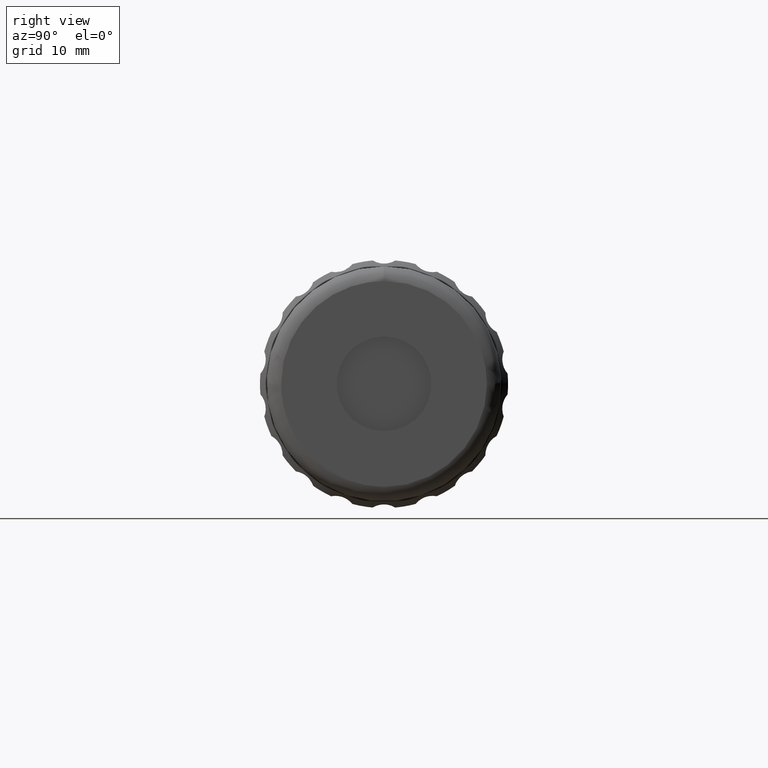
[diagram: clean part render]
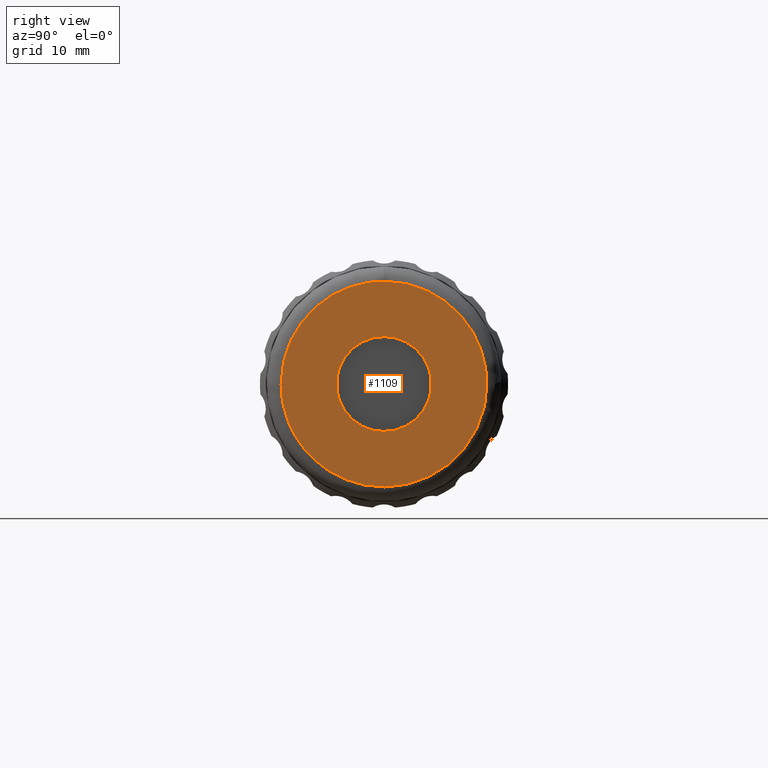
[diagram: same view with one face highlighted and labeled with its STEP entity id]
A machine part, right view. The second image highlights one B-rep face of the part: STEP entity #1109.
In plain terms, the highlighted planar face has unit normal (1, 0, 0).
Its self-contained STEP definition (entity closure, byte-faithful):
#2 = CARTESIAN_POINT ( 'NONE',  ( 78.44685803487878673, 37.76137322946063790, 14.09999999999999964 ) ) ;
#39 = ORIENTED_EDGE ( 'NONE', *, *, #1009, .T. ) ;
#70 = CARTESIAN_POINT ( 'NONE',  ( 78.44685803487880094, 31.92096199999999584, -1.036051192078660836E-15 ) ) ;
#93 = EDGE_LOOP ( 'NONE', ( #39 ) ) ;
#184 = ORIENTED_EDGE ( 'NONE', *, *, #1584, .F. ) ;
#196 = CARTESIAN_POINT ( 'NONE',  ( 78.44685803487880094, 46.02096199999999726, 14.10000000000000142 ) ) ;
#200 = PLANE ( 'NONE',  #1130 ) ;
#277 = EDGE_CURVE ( 'NONE', #1016, #397, #1406, .T. ) ;
#319 = ORIENTED_EDGE ( 'NONE', *, *, #277, .F. ) ;
#397 = VERTEX_POINT ( 'NONE', #1711 ) ;
#401 = DIRECTION ( 'NONE',  ( -1.000000000000000000, -0.000000000000000000, -0.000000000000000000 ) ) ;
#449 = CARTESIAN_POINT ( 'NONE',  ( 78.44685803487880094, 46.02096199999999726, 14.10000000000000142 ) ) ;
#524 = DIRECTION ( 'NONE',  ( 0.000000000000000000, 0.000000000000000000, -1.000000000000000000 ) ) ;
#571 = CARTESIAN_POINT ( 'NONE',  ( 78.44685803487880094, 60.12096199999999868, 0.000000000000000000 ) ) ;
#653 = CARTESIAN_POINT ( 'NONE',  ( 78.44685803487880094, 60.12096200000000579, -28.19999999999999929 ) ) ;
#689 = AXIS2_PLACEMENT_3D ( 'NONE', #1988, #401, #1034 ) ;
#946 = CARTESIAN_POINT ( 'NONE',  ( 78.44685803487878673, 60.12096199999999868, 8.259588770539359359 ) ) ;
#948 = ORIENTED_EDGE ( 'NONE', *, *, #1914, .F. ) ;
#1004 = FACE_OUTER_BOUND ( 'NONE', #1264, .T. ) ;
#1009 = EDGE_CURVE ( 'NONE', #1541, #1541, #1341, .T. ) ;
#1016 = VERTEX_POINT ( 'NONE', #70 ) ;
#1034 = DIRECTION ( 'NONE',  ( 0.000000000000000000, 0.000000000000000000, -1.000000000000000000 ) ) ;
#1109 = ADVANCED_FACE ( 'NONE', ( #1004, #1653 ), #200, .T. ) ;
#1125 =( BOUNDED_CURVE ( )  B_SPLINE_CURVE ( 3, ( #449, #1791, #946, #1595 ),
 .UNSPECIFIED., .F., .T. ) 
 B_SPLINE_CURVE_WITH_KNOTS ( ( 4, 4 ),
 ( 0.000000000000000000, 1.000000000000000000 ),
 .UNSPECIFIED. ) 
 CURVE ( )  GEOMETRIC_REPRESENTATION_ITEM ( )  RATIONAL_B_SPLINE_CURVE ( ( 1.000000000000000000, 0.8047378541243649375, 0.8047378541243649375, 1.000000000000000000 ) ) 
 REPRESENTATION_ITEM ( '' )  );
#1130 = AXIS2_PLACEMENT_3D ( 'NONE', #1672, #1336, #524 ) ;
#1146 = CARTESIAN_POINT ( 'NONE',  ( 78.44685803487880094, 31.92096199999999584, -1.036051192078660836E-15 ) ) ;
#1264 = EDGE_LOOP ( 'NONE', ( #948, #184, #319 ) ) ;
#1327 = CARTESIAN_POINT ( 'NONE',  ( 78.44685803487880094, 31.92096199999999584, -1.036051192078660836E-15 ) ) ;
#1336 = DIRECTION ( 'NONE',  ( 1.000000000000000000, 0.000000000000000000, 0.000000000000000000 ) ) ;
#1341 = CIRCLE ( 'NONE', #689, 6.500000000000000888 ) ;
#1406 =( BOUNDED_CURVE ( )  B_SPLINE_CURVE ( 3, ( #1146, #1812, #2, #196 ),
 .UNSPECIFIED., .F., .T. ) 
 B_SPLINE_CURVE_WITH_KNOTS ( ( 4, 4 ),
 ( 0.000000000000000000, 1.000000000000000000 ),
 .UNSPECIFIED. ) 
 CURVE ( )  GEOMETRIC_REPRESENTATION_ITEM ( )  RATIONAL_B_SPLINE_CURVE ( ( 1.000000000000000000, 0.8047378541243649375, 0.8047378541243649375, 1.000000000000000000 ) ) 
 REPRESENTATION_ITEM ( '' )  );
#1446 = VERTEX_POINT ( 'NONE', #571 ) ;
#1541 = VERTEX_POINT ( 'NONE', #1713 ) ;
#1584 = EDGE_CURVE ( 'NONE', #397, #1446, #1125, .T. ) ;
#1595 = CARTESIAN_POINT ( 'NONE',  ( 78.44685803487880094, 60.12096199999999868, 0.000000000000000000 ) ) ;
#1624 =( BOUNDED_CURVE ( )  B_SPLINE_CURVE ( 3, ( #2107, #653, #1945, #1327 ),
 .UNSPECIFIED., .F., .T. ) 
 B_SPLINE_CURVE_WITH_KNOTS ( ( 4, 4 ),
 ( 0.000000000000000000, 1.000000000000000000 ),
 .UNSPECIFIED. ) 
 CURVE ( )  GEOMETRIC_REPRESENTATION_ITEM ( )  RATIONAL_B_SPLINE_CURVE ( ( 1.000000000000000000, 0.3333333333333333703, 0.3333333333333333703, 1.000000000000000000 ) ) 
 REPRESENTATION_ITEM ( '' )  );
#1653 = FACE_BOUND ( 'NONE', #93, .T. ) ;
#1672 = CARTESIAN_POINT ( 'NONE',  ( 78.44685803487880094, 46.02096199999999726, 14.44999999999999929 ) ) ;
#1711 = CARTESIAN_POINT ( 'NONE',  ( 78.44685803487880094, 46.02096199999999726, 14.10000000000000142 ) ) ;
#1713 = CARTESIAN_POINT ( 'NONE',  ( 78.44685803487880094, 46.02096199999999726, -6.500000000000000888 ) ) ;
#1791 = CARTESIAN_POINT ( 'NONE',  ( 78.44685803487878673, 54.28055077053935662, 14.09999999999999964 ) ) ;
#1812 = CARTESIAN_POINT ( 'NONE',  ( 78.44685803487878673, 31.92096199999999584, 8.259588770539357583 ) ) ;
#1914 = EDGE_CURVE ( 'NONE', #1446, #1016, #1624, .T. ) ;
#1945 = CARTESIAN_POINT ( 'NONE',  ( 78.44685803487880094, 31.92096199999999584, -28.19999999999999929 ) ) ;
#1988 = CARTESIAN_POINT ( 'NONE',  ( 78.44685803487880094, 46.02096199999999726, 4.350675744370770171E-31 ) ) ;
#2107 = CARTESIAN_POINT ( 'NONE',  ( 78.44685803487880094, 60.12096199999999868, 0.000000000000000000 ) ) ;